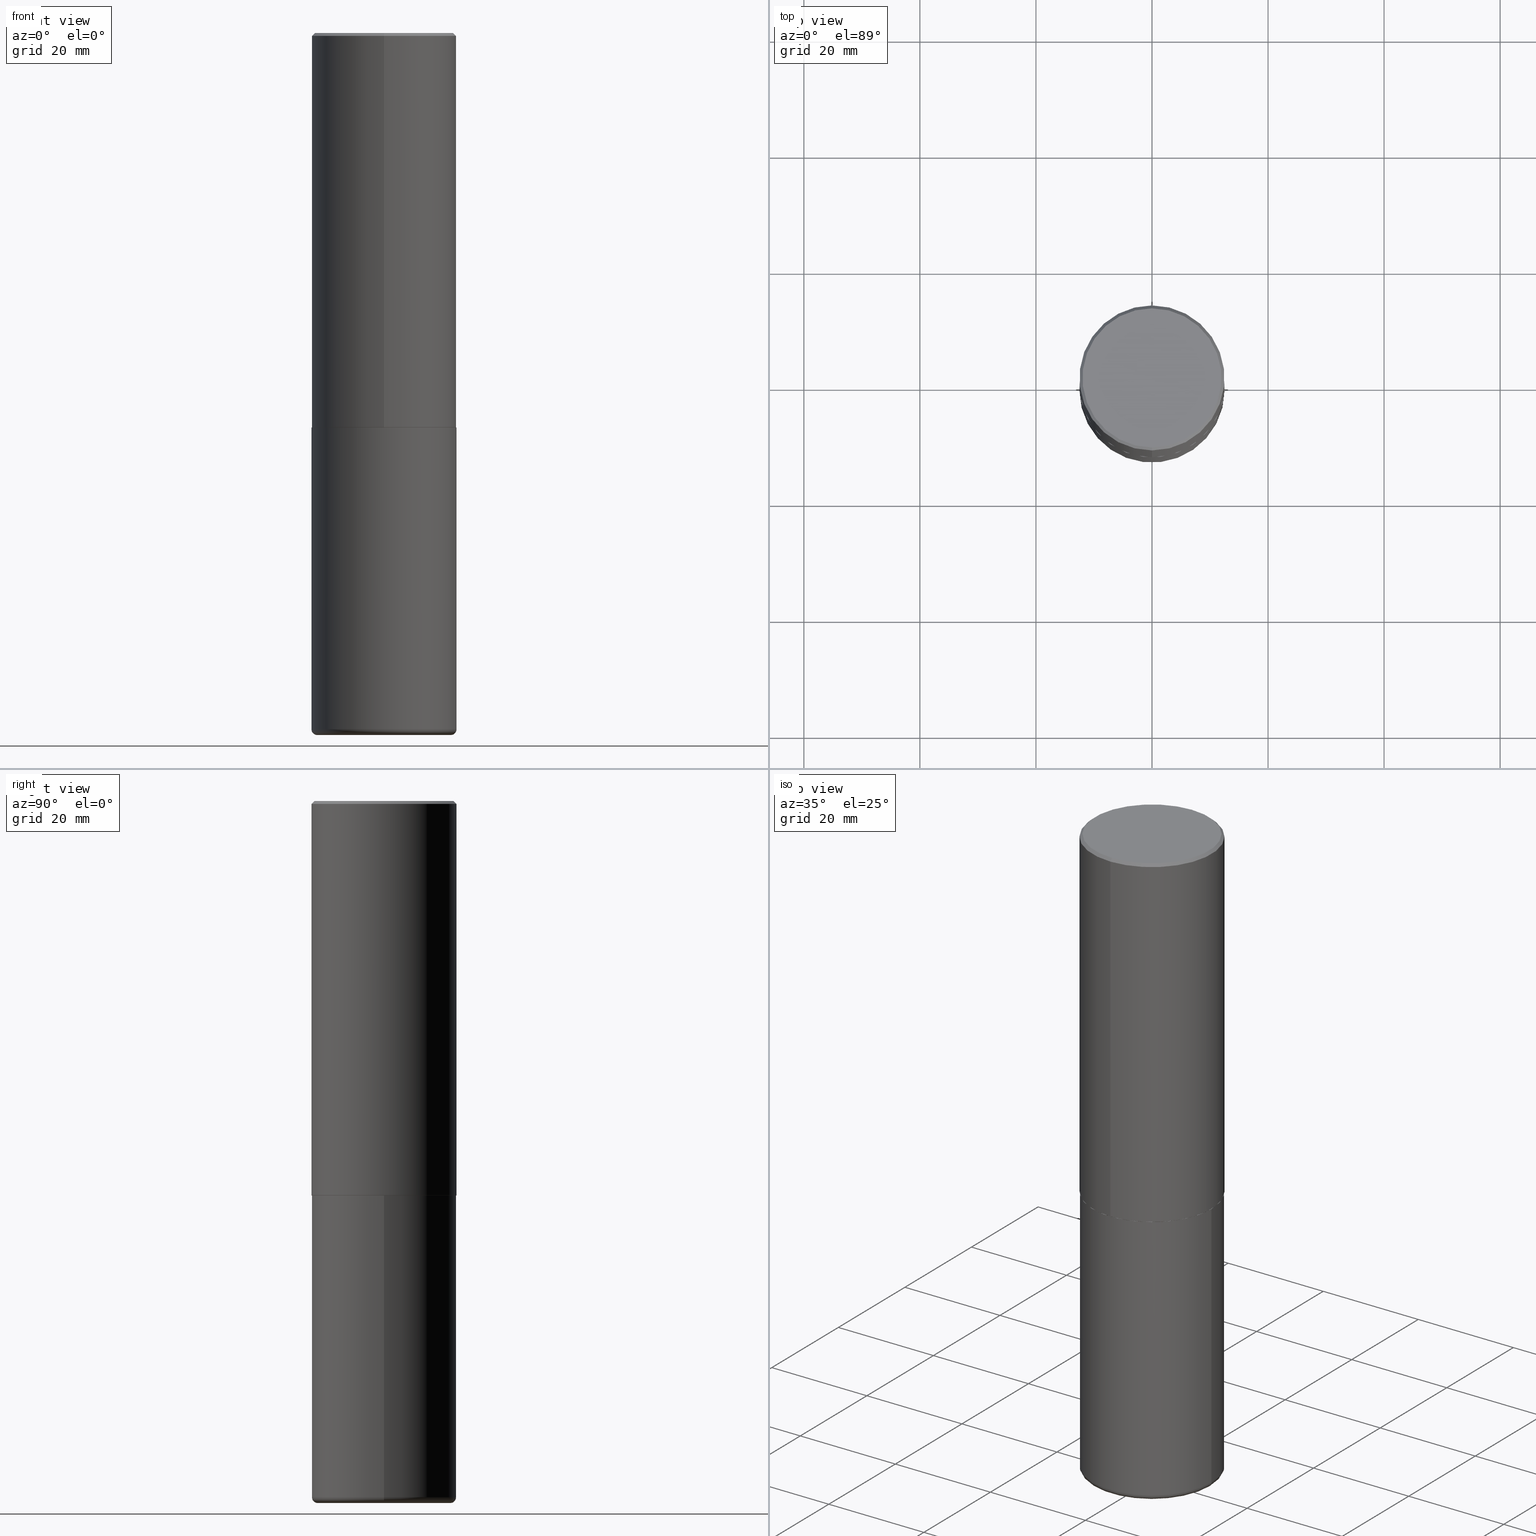
[diagram: canonical four-view strip — front | top / right | iso, engineering-drawing reading convention]
A machine part, canonical four-view strip (front | top / right | iso — engineering-drawing reading convention). The complete STEP part file that produces these views, byte-faithful:
ISO-10303-21;
HEADER;
FILE_DESCRIPTION (( 'STEP AP203' ),
    '1' );
FILE_NAME ('47146.STEP',
    '2024-03-05T23:41:40',
    ( '' ),
    ( '' ),
    'SwSTEP 2.0',
    'SolidWorks 2023',
    '' );
FILE_SCHEMA (( 'CONFIG_CONTROL_DESIGN' ));
ENDSEC;

DATA;
#1 = DIRECTION ( 'NONE',  ( -6.982962677686265922E-15, -1.000000000000000000, 3.486624039460257331E-15 ) ) ;
#2 = APPROVAL_DATE_TIME ( #328, #152 ) ;
#3 = ADVANCED_FACE ( 'NONE', ( #123 ), #35, .T. ) ;
#4 = FACE_OUTER_BOUND ( 'NONE', #50, .T. ) ;
#5 = AXIS2_PLACEMENT_3D ( 'NONE', #414, #125, #126 ) ;
#6 = CARTESIAN_POINT ( 'NONE',  ( -0.4921499999999999764, 3.496936074043332897E-15, -2.420853904668951509E-29 ) ) ;
#7 = CLOSED_SHELL ( 'NONE', ( #31, #147, #71, #3, #374, #271, #237, #122 ) ) ;
#8 = EDGE_CURVE ( 'NONE', #30, #189, #354, .T. ) ;
#9 = DIRECTION ( 'NONE',  ( 5.024295867790635654E-15, 0.7071067811869121700, 0.7071067811861828645 ) ) ;
#10 = EDGE_CURVE ( 'NONE', #404, #379, #273, .T. ) ;
#11 = CARTESIAN_POINT ( 'NONE',  ( 1.155337282794105951E-28, -1.649515443723055610E-14, -4.724399999999999267 ) ) ;
#12 = FACE_OUTER_BOUND ( 'NONE', #233, .T. ) ;
#13 = AXIS2_PLACEMENT_3D ( 'NONE', #264, #319, #294 ) ;
#14 = CIRCLE ( 'NONE', #384, 0.4921500000000002539 ) ;
#15 = CARTESIAN_POINT ( 'NONE',  ( -0.4921500000000000874, -1.299821836318722241E-14, -4.724399999999999267 ) ) ;
#16 = ORIENTED_EDGE ( 'NONE', *, *, #57, .T. ) ;
#17 = DATE_AND_TIME ( #376, #372 ) ;
#18 = ORIENTED_EDGE ( 'NONE', *, *, #26, .F. ) ;
#19 = PERSON_AND_ORGANIZATION ( #254, #206 ) ;
#20 = AXIS2_PLACEMENT_3D ( 'NONE', #301, #365, #47 ) ;
#21 = ORIENTED_EDGE ( 'NONE', *, *, #412, .T. ) ;
#22 = PERSON_AND_ORGANIZATION_ROLE ( 'creator' ) ;
#23 = CARTESIAN_POINT ( 'NONE',  ( 1.155337282794105951E-28, -1.649515443723055610E-14, -4.724399999999999267 ) ) ;
#24 = ORIENTED_EDGE ( 'NONE', *, *, #64, .T. ) ;
#25 = DATE_AND_TIME ( #343, #400 ) ;
#26 = EDGE_CURVE ( 'NONE', #262, #164, #226, .T. ) ;
#27 = FACE_OUTER_BOUND ( 'NONE', #145, .T. ) ;
#28 = AXIS2_PLACEMENT_3D ( 'NONE', #40, #278, #300 ) ;
#29 = AXIS2_PLACEMENT_3D ( 'NONE', #391, #143, #279 ) ;
#30 = VERTEX_POINT ( 'NONE', #165 ) ;
#31 = ADVANCED_FACE ( 'NONE', ( #155 ), #199, .T. ) ;
#32 = CARTESIAN_POINT ( 'NONE',  ( 4.894235917135264524E-31, -6.978239317535049922E-17, -0.02000000000000010797 ) ) ;
#33 = ORIENTED_EDGE ( 'NONE', *, *, #39, .F. ) ;
#34 = CALENDAR_DATE ( 2024, 5, 3 ) ;
#35 = CONICAL_SURFACE ( 'NONE', #104, 0.4921499999999999209, 0.7853981633974466137 ) ;
#36 = EDGE_LOOP ( 'NONE', ( #385, #351, #287, #383 ) ) ;
#37 = AXIS2_PLACEMENT_3D ( 'NONE', #41, #397, #239 ) ;
#38 = DIRECTION ( 'NONE',  ( -2.447117958567619178E-29, 3.489119658767506053E-15, 1.000000000000000000 ) ) ;
#39 = EDGE_CURVE ( 'NONE', #358, #318, #163, .T. ) ;
#40 = CARTESIAN_POINT ( 'NONE',  ( 1.164972429890475522E-28, -1.663271880198097847E-14, -4.763799999999999812 ) ) ;
#41 = CARTESIAN_POINT ( 'NONE',  ( 0.000000000000000000, 0.000000000000000000, 0.000000000000000000 ) ) ;
#42 = AXIS2_PLACEMENT_3D ( 'NONE', #207, #333, #45 ) ;
#43 = ADVANCED_FACE ( 'NONE', ( #27 ), #398, .T. ) ;
#44 = DIRECTION ( 'NONE',  ( 4.937700262164538576E-15, 0.7071067811865437980, -0.7071067811865511255 ) ) ;
#45 = DIRECTION ( 'NONE',  ( -6.982962677686265922E-15, -1.000000000000000000, 3.337287582609300506E-15 ) ) ;
#46 = DIRECTION ( 'NONE',  ( 1.000000000000000000, -6.982962677686265133E-15, 4.883557194083112901E-29 ) ) ;
#47 = DIRECTION ( 'NONE',  ( 1.000000000000000000, -6.982962677686265922E-15, 0.000000000000000000 ) ) ;
#48 = PLANE ( 'NONE',  #368 ) ;
#49 = CYLINDRICAL_SURFACE ( 'NONE', #166, 0.4921500000000000874 ) ;
#50 = EDGE_LOOP ( 'NONE', ( #347, #156, #380, #326 ) ) ;
#51 = ORIENTED_EDGE ( 'NONE', *, *, #96, .F. ) ;
#52 = CARTESIAN_POINT ( 'NONE',  ( 0.000000000000000000, 0.000000000000000000, 0.000000000000000000 ) ) ;
#53 = CARTESIAN_POINT ( 'NONE',  ( 7.635318159677945866E-29, -2.238157687916168233E-14, -4.763799999999999812 ) ) ;
#54 = AXIS2_PLACEMENT_3D ( 'NONE', #53, #185, #317 ) ;
#55 = ORIENTED_EDGE ( 'NONE', *, *, #10, .T. ) ;
#56 = CC_DESIGN_DATE_AND_TIME_ASSIGNMENT ( #299, #231, ( #73 ) ) ;
#57 = EDGE_CURVE ( 'NONE', #30, #320, #66, .T. ) ;
#58 = PERSON_AND_ORGANIZATION ( #254, #206 ) ;
#59 = FACE_OUTER_BOUND ( 'NONE', #297, .T. ) ;
#60 = CC_DESIGN_APPROVAL ( #364, ( #93 ) ) ;
#61 = ORIENTED_EDGE ( 'NONE', *, *, #8, .F. ) ;
#62 = CARTESIAN_POINT ( 'NONE',  ( -3.376394089603257868E-15, -0.4921499999999999764, -0.01999999999999839059 ) ) ;
#63 = DIRECTION ( 'NONE',  ( -6.982962677686265922E-15, -1.000000000000000000, 3.337287582609300506E-15 ) ) ;
#64 = EDGE_CURVE ( 'NONE', #358, #173, #360, .T. ) ;
#65 = CARTESIAN_POINT ( 'NONE',  ( -3.376394089603257868E-15, -0.4921499999999999764, -0.01999999999999839059 ) ) ;
#66 = CIRCLE ( 'NONE', #5, 0.4721499999999996255 ) ;
#67 = ORIENTED_EDGE ( 'NONE', *, *, #137, .F. ) ;
#68 = APPROVAL_ROLE ( '' ) ;
#69 = LOCAL_TIME ( 18, 41, 40.00000000000000000, #272 ) ;
#70 = CARTESIAN_POINT ( 'NONE',  ( 4.894235917135264524E-31, -6.978239317535049922E-17, -0.02000000000000010797 ) ) ;
#71 = ADVANCED_FACE ( 'NONE', ( #59 ), #98, .T. ) ;
#72 = CARTESIAN_POINT ( 'NONE',  ( 0.4527499999999999858, -1.979425515430343739E-14, -4.763799999999999812 ) ) ;
#73 = SECURITY_CLASSIFICATION ( '', '', #406 ) ;
#74 = DIRECTION ( 'NONE',  ( 2.447117958567618897E-29, -3.489119658767506053E-15, -1.000000000000000000 ) ) ;
#75 = DIRECTION ( 'NONE',  ( 1.000000000000000000, -6.982962677686261977E-15, 0.000000000000000000 ) ) ;
#76 = DIRECTION ( 'NONE',  ( 1.000000000000000000, -6.982962677686265922E-15, 4.876176775795935793E-29 ) ) ;
#77 = EDGE_CURVE ( 'NONE', #164, #404, #324, .T. ) ;
#78 = DIRECTION ( 'NONE',  ( 2.438088387897960049E-29, -3.491481338843145188E-15, -1.000000000000000000 ) ) ;
#79 = ORIENTED_EDGE ( 'NONE', *, *, #290, .T. ) ;
#80 = AXIS2_PLACEMENT_3D ( 'NONE', #362, #283, #176 ) ;
#81 = APPLICATION_PROTOCOL_DEFINITION ( 'international standard', 'config_control_design', 1994, #281 ) ;
#82 = FACE_OUTER_BOUND ( 'NONE', #230, .T. ) ;
#83 = PERSON_AND_ORGANIZATION_ROLE ( 'design_supplier' ) ;
#84 = CIRCLE ( 'NONE', #315, 0.4527499999999999858 ) ;
#85 = PRODUCT_DEFINITION_SHAPE ( 'NONE', 'NONE',  #93 ) ;
#86 = DIRECTION ( 'NONE',  ( 6.982962677686265922E-15, 1.000000000000000000, -3.486624039460257331E-15 ) ) ;
#87 = CARTESIAN_POINT ( 'NONE',  ( 6.551424198677227885E-29, -9.341071150452363547E-15, -2.677199999999999136 ) ) ;
#88 = COORDINATED_UNIVERSAL_TIME_OFFSET ( 5, 0, .BEHIND. ) ;
#89 = MANIFOLD_SOLID_BREP ( 'Body-Move/Copy2[1]', #314 ) ;
#90 = EDGE_LOOP ( 'NONE', ( #55, #415 ) ) ;
#91 = AXIS2_PLACEMENT_3D ( 'NONE', #363, #131, #274 ) ;
#92 = ORIENTED_EDGE ( 'NONE', *, *, #225, .F. ) ;
#93 = PRODUCT_DEFINITION ( 'UNKNOWN', '', #192, #340 ) ;
#94 = FACE_OUTER_BOUND ( 'NONE', #409, .T. ) ;
#95 = ORIENTED_EDGE ( 'NONE', *, *, #389, .T. ) ;
#96 = EDGE_CURVE ( 'NONE', #173, #142, #168, .T. ) ;
#97 = CARTESIAN_POINT ( 'NONE',  ( 0.000000000000000000, 0.000000000000000000, 0.000000000000000000 ) ) ;
#98 = CONICAL_SURFACE ( 'NONE', #341, 0.4921499999999999209, 0.7853981633974466137 ) ;
#99 = CC_DESIGN_SECURITY_CLASSIFICATION ( #73, ( #192 ) ) ;
#100 = EDGE_CURVE ( 'NONE', #262, #295, #158, .T. ) ;
#101 = LINE ( 'NONE', #6, #275 ) ;
#102 = CARTESIAN_POINT ( 'NONE',  ( 3.496936074043333291E-15, 0.4921500000000000874, -1.717170240062428491E-15 ) ) ;
#103 = DIRECTION ( 'NONE',  ( -2.447117958567619178E-29, 3.489119658767506053E-15, 1.000000000000000000 ) ) ;
#104 = AXIS2_PLACEMENT_3D ( 'NONE', #32, #188, #86 ) ;
#105 = DIRECTION ( 'NONE',  ( -6.982962677686266711E-15, -1.000000000000000000, 3.330506545156064285E-15 ) ) ;
#106 = CIRCLE ( 'NONE', #20, 0.4921499999999999764 ) ;
#107 = FACE_OUTER_BOUND ( 'NONE', #36, .T. ) ;
#108 = CARTESIAN_POINT ( 'NONE',  ( -3.429682119145543892E-15, -0.4911500000000093014, -2.677199999999997360 ) ) ;
#109 = EDGE_CURVE ( 'NONE', #320, #396, #209, .T. ) ;
#110 = PERSON_AND_ORGANIZATION_ROLE ( 'design_owner' ) ;
#111 = CIRCLE ( 'NONE', #159, 0.4921499999999999764 ) ;
#112 = CARTESIAN_POINT ( 'NONE',  ( 6.551424198677227885E-29, -9.341071150452363547E-15, -2.677199999999999136 ) ) ;
#113 = DIRECTION ( 'NONE',  ( -1.000000000000000000, 6.982962677686265922E-15, -4.876176775795935793E-29 ) ) ;
#114 = ADVANCED_BREP_SHAPE_REPRESENTATION ( '47146', ( #89, #238, #323 ), #127 ) ;
#115 = DATE_AND_TIME ( #344, #184 ) ;
#116 = PERSON_AND_ORGANIZATION ( #254, #206 ) ;
#117 = VECTOR ( 'NONE', #293, 39.37007874015748143 ) ;
#118 = AXIS2_PLACEMENT_3D ( 'NONE', #97, #203, #392 ) ;
#119 = ORIENTED_EDGE ( 'NONE', *, *, #412, .F. ) ;
#120 = EDGE_LOOP ( 'NONE', ( #325, #16 ) ) ;
#121 = CARTESIAN_POINT ( 'NONE',  ( 3.436665081823295777E-15, 0.4921499999999998098, -0.02000000000000182188 ) ) ;
#122 = ADVANCED_FACE ( 'NONE', ( #172 ), #331, .F. ) ;
#123 = FACE_OUTER_BOUND ( 'NONE', #194, .T. ) ;
#124 = EDGE_LOOP ( 'NONE', ( #213, #95, #21, #223 ) ) ;
#125 = DIRECTION ( 'NONE',  ( -2.447117958567619178E-29, 3.489119658767506053E-15, 1.000000000000000000 ) ) ;
#126 = DIRECTION ( 'NONE',  ( -6.982962677686265922E-15, -1.000000000000000000, 3.489119658767506053E-15 ) ) ;
#127 =( GEOMETRIC_REPRESENTATION_CONTEXT ( 3 ) GLOBAL_UNCERTAINTY_ASSIGNED_CONTEXT ( ( #215 ) ) GLOBAL_UNIT_ASSIGNED_CONTEXT ( ( #373, #220, #349 ) ) REPRESENTATION_CONTEXT ( 'NONE', 'WORKASPACE' ) );
#128 = ORIENTED_EDGE ( 'NONE', *, *, #77, .F. ) ;
#129 = ORIENTED_EDGE ( 'NONE', *, *, #290, .F. ) ;
#130 = DIRECTION ( 'NONE',  ( -2.447117958567619178E-29, 3.489119658767506053E-15, 1.000000000000000000 ) ) ;
#131 = DIRECTION ( 'NONE',  ( 7.105427357601001859E-15, 1.000000000000000000, -3.491481338843145583E-15 ) ) ;
#132 = DIRECTION ( 'NONE',  ( -2.447117958567619178E-29, 3.489119658767506053E-15, 1.000000000000000000 ) ) ;
#133 = CARTESIAN_POINT ( 'NONE',  ( 3.297005828269567997E-15, 0.4721499999999996255, -1.534829799523272196E-15 ) ) ;
#134 = DIRECTION ( 'NONE',  ( -6.982962677686265922E-15, -1.000000000000000000, 3.486624039460257331E-15 ) ) ;
#135 = CARTESIAN_POINT ( 'NONE',  ( -3.436665081823232273E-15, -0.4921500000000095798, -2.676199999999997914 ) ) ;
#136 = DIRECTION ( 'NONE',  ( 1.000000000000000000, -6.982962677686269077E-15, 0.000000000000000000 ) ) ;
#137 = EDGE_CURVE ( 'NONE', #189, #396, #322, .T. ) ;
#138 = VECTOR ( 'NONE', #193, 39.37007874015748854 ) ;
#139 = DIRECTION ( 'NONE',  ( -2.445468806185136597E-29, 3.491481338843145583E-15, 1.000000000000000000 ) ) ;
#140 = APPROVAL_PERSON_ORGANIZATION ( #19, #364, #263 ) ;
#141 = CC_DESIGN_PERSON_AND_ORGANIZATION_ASSIGNMENT ( #251, #22, ( #93 ) ) ;
#142 = VERTEX_POINT ( 'NONE', #277 ) ;
#143 = DIRECTION ( 'NONE',  ( -2.445468806185136597E-29, 3.491481338843145583E-15, 1.000000000000000000 ) ) ;
#144 = EDGE_CURVE ( 'NONE', #396, #189, #205, .T. ) ;
#145 = EDGE_LOOP ( 'NONE', ( #342, #270, #129, #18 ) ) ;
#146 = APPROVAL_STATUS ( 'not_yet_approved' ) ;
#147 = ADVANCED_FACE ( 'NONE', ( #393 ), #170, .T. ) ;
#148 = ORIENTED_EDGE ( 'NONE', *, *, #356, .F. ) ;
#149 = DIRECTION ( 'NONE',  ( -6.982962677686266711E-15, -1.000000000000000000, 3.330506545156064285E-15 ) ) ;
#150 = AXIS2_PLACEMENT_3D ( 'NONE', #70, #103, #1 ) ;
#151 = AXIS2_PLACEMENT_3D ( 'NONE', #339, #139, #76 ) ;
#152 = APPROVAL ( #224, 'UNSPECIFIED' ) ;
#153 = EDGE_LOOP ( 'NONE', ( #51, #401, #169, #202 ) ) ;
#154 = PERSON_AND_ORGANIZATION ( #254, #206 ) ;
#155 = FACE_OUTER_BOUND ( 'NONE', #198, .T. ) ;
#156 = ORIENTED_EDGE ( 'NONE', *, *, #225, .T. ) ;
#157 =( LENGTH_UNIT ( ) NAMED_UNIT ( * ) SI_UNIT ( $, .METRE. ) );
#158 = CIRCLE ( 'NONE', #28, 0.4527499999999999858 ) ;
#159 = AXIS2_PLACEMENT_3D ( 'NONE', #310, #336, #75 ) ;
#160 = CARTESIAN_POINT ( 'NONE',  ( 4.894235917135264524E-31, -6.978239317535049922E-17, -0.02000000000000010797 ) ) ;
#161 = ORIENTED_EDGE ( 'NONE', *, *, #330, .F. ) ;
#162 = PERSON_AND_ORGANIZATION ( #254, #206 ) ;
#163 = LINE ( 'NONE', #292, #117 ) ;
#164 = VERTEX_POINT ( 'NONE', #329 ) ;
#165 = CARTESIAN_POINT ( 'NONE',  ( -3.307789109625541747E-15, -0.4721499999999996255, 1.872503941614685503E-15 ) ) ;
#166 = AXIS2_PLACEMENT_3D ( 'NONE', #247, #132, #367 ) ;
#167 = ORIENTED_EDGE ( 'NONE', *, *, #144, .T. ) ;
#168 = LINE ( 'NONE', #200, #234 ) ;
#169 = ORIENTED_EDGE ( 'NONE', *, *, #39, .T. ) ;
#170 = CYLINDRICAL_SURFACE ( 'NONE', #118, 0.4921500000000000874 ) ;
#171 = CARTESIAN_POINT ( 'NONE',  ( 3.366835455046432084E-15, 0.4721499999999996255, -1.422271752159468089E-15 ) ) ;
#172 = FACE_OUTER_BOUND ( 'NONE', #120, .T. ) ;
#173 = VERTEX_POINT ( 'NONE', #242 ) ;
#174 = CYLINDRICAL_SURFACE ( 'NONE', #37, 0.4921499999999999764 ) ;
#175 = EDGE_CURVE ( 'NONE', #142, #396, #386, .T. ) ;
#176 = DIRECTION ( 'NONE',  ( -6.982962677686265922E-15, -1.000000000000000000, 3.489119658767506053E-15 ) ) ;
#177 = CARTESIAN_POINT ( 'NONE',  ( -0.4921499999999999764, -9.424338064747378311E-15, -2.677199999999999580 ) ) ;
#178 = CIRCLE ( 'NONE', #80, 0.4721499999999996255 ) ;
#179 = PERSON_AND_ORGANIZATION ( #254, #206 ) ;
#180 = ORIENTED_EDGE ( 'NONE', *, *, #96, .T. ) ;
#181 = DIRECTION ( 'NONE',  ( 1.000000000000000000, 0.000000000000000000, 0.000000000000000000 ) ) ;
#182 = ORIENTED_EDGE ( 'NONE', *, *, #175, .T. ) ;
#183 = COORDINATED_UNIVERSAL_TIME_OFFSET ( 5, 0, .BEHIND. ) ;
#184 = LOCAL_TIME ( 18, 41, 40.00000000000000000, #288 ) ;
#185 = DIRECTION ( 'NONE',  ( 2.438088387897960049E-29, -3.491481338843145188E-15, -1.000000000000000000 ) ) ;
#186 = ORIENTED_EDGE ( 'NONE', *, *, #100, .F. ) ;
#187 = PERSON_AND_ORGANIZATION ( #254, #206 ) ;
#188 = DIRECTION ( 'NONE',  ( 2.447117958567619178E-29, -3.489119658767506053E-15, -1.000000000000000000 ) ) ;
#189 = VERTEX_POINT ( 'NONE', #65 ) ;
#190 = CARTESIAN_POINT ( 'NONE',  ( 0.4921499999999999764, -1.278405892217416209E-14, -2.677199999999999580 ) ) ;
#191 = AXIS2_PLACEMENT_3D ( 'NONE', #229, #219, #357 ) ;
#192 = PRODUCT_DEFINITION_FORMATION_WITH_SPECIFIED_SOURCE ( 'ANY', '', #378, .NOT_KNOWN. ) ;
#193 = DIRECTION ( 'NONE',  ( -4.851104656540954809E-15, -0.7071067811865486830, -0.7071067811865462405 ) ) ;
#194 = EDGE_LOOP ( 'NONE', ( #61, #148, #355, #167 ) ) ;
#195 = ADVANCED_FACE ( 'NONE', ( #4 ), #259, .T. ) ;
#196 = CC_DESIGN_PERSON_AND_ORGANIZATION_ASSIGNMENT ( #154, #83, ( #192 ) ) ;
#197 = CARTESIAN_POINT ( 'NONE',  ( 6.551424198677227885E-29, -9.341071150452363547E-15, -2.677199999999999136 ) ) ;
#198 = EDGE_LOOP ( 'NONE', ( #24, #180, #161, #33 ) ) ;
#199 = CONICAL_SURFACE ( 'NONE', #382, 0.4911499999999999755, 0.7853981633979605359 ) ;
#200 = CARTESIAN_POINT ( 'NONE',  ( 3.489830646685796970E-15, 0.4911499999999905941, -2.677200000000000468 ) ) ;
#201 = CIRCLE ( 'NONE', #91, 0.03940000000000033753 ) ;
#202 = ORIENTED_EDGE ( 'NONE', *, *, #389, .F. ) ;
#203 = DIRECTION ( 'NONE',  ( -2.447117958567619178E-29, 3.489119658767506053E-15, 1.000000000000000000 ) ) ;
#204 = APPLICATION_CONTEXT ( 'configuration controlled 3d designs of mechanical parts and assemblies' ) ;
#205 = CIRCLE ( 'NONE', #267, 0.4921499999999999209 ) ;
#206 = ORGANIZATION ( 'UNSPECIFIED', 'UNSPECIFIED', '' ) ;
#207 = CARTESIAN_POINT ( 'NONE',  ( 6.551424198677227885E-29, -9.341071150452363547E-15, -2.677199999999999136 ) ) ;
#208 = CC_DESIGN_PERSON_AND_ORGANIZATION_ASSIGNMENT ( #179, #110, ( #378 ) ) ;
#209 = LINE ( 'NONE', #335, #388 ) ;
#210 = DIRECTION ( 'NONE',  ( -2.447117958567619178E-29, 3.489119658767506053E-15, 1.000000000000000000 ) ) ;
#211 = FACE_OUTER_BOUND ( 'NONE', #124, .T. ) ;
#212 = DIRECTION ( 'NONE',  ( -6.982962677686265922E-15, -1.000000000000000000, 3.337287582609300506E-15 ) ) ;
#213 = ORIENTED_EDGE ( 'NONE', *, *, #175, .F. ) ;
#214 = CARTESIAN_POINT ( 'NONE',  ( 6.548977080718662055E-29, -9.337582030793598206E-15, -2.676199999999999690 ) ) ;
#215 = UNCERTAINTY_MEASURE_WITH_UNIT (LENGTH_MEASURE( 1.000000000000000082E-05 ), #373, 'distance_accuracy_value', 'NONE');
#216 = ORIENTED_EDGE ( 'NONE', *, *, #255, .F. ) ;
#217 = APPROVAL_STATUS ( 'not_yet_approved' ) ;
#218 = APPROVAL_PERSON_ORGANIZATION ( #162, #152, #68 ) ;
#219 = DIRECTION ( 'NONE',  ( -6.982962677686266711E-15, -1.000000000000000000, 3.491481338843145583E-15 ) ) ;
#220 =( NAMED_UNIT ( * ) PLANE_ANGLE_UNIT ( ) SI_UNIT ( $, .RADIAN. ) );
#221 = EDGE_CURVE ( 'NONE', #295, #266, #201, .T. ) ;
#222 = DIRECTION ( 'NONE',  ( -6.982962677686265922E-15, -1.000000000000000000, 3.337287582609300506E-15 ) ) ;
#223 = ORIENTED_EDGE ( 'NONE', *, *, #144, .F. ) ;
#224 = APPROVAL_STATUS ( 'not_yet_approved' ) ;
#225 = EDGE_CURVE ( 'NONE', #295, #262, #84, .T. ) ;
#226 = CIRCLE ( 'NONE', #191, 0.03940000000000033753 ) ;
#227 = LOCAL_TIME ( 18, 41, 40.00000000000000000, #369 ) ;
#228 = EDGE_LOOP ( 'NONE', ( #387, #182, #67, #119 ) ) ;
#229 = CARTESIAN_POINT ( 'NONE',  ( 0.4527499999999999858, -1.965669078955301187E-14, -4.724399999999999267 ) ) ;
#230 = EDGE_LOOP ( 'NONE', ( #186, #92 ) ) ;
#231 = DATE_TIME_ROLE ( 'classification_date' ) ;
#232 = PLANE ( 'NONE',  #235 ) ;
#233 = EDGE_LOOP ( 'NONE', ( #79, #269, #359, #128 ) ) ;
#234 = VECTOR ( 'NONE', #9, 39.37007874015748143 ) ;
#235 = AXIS2_PLACEMENT_3D ( 'NONE', #313, #399, #285 ) ;
#236 = ORIENTED_EDGE ( 'NONE', *, *, #57, .F. ) ;
#237 = ADVANCED_FACE ( 'NONE', ( #94 ), #232, .F. ) ;
#238 = MANIFOLD_SOLID_BREP ( 'Body-Move/Copy2[2]', #7 ) ;
#239 = DIRECTION ( 'NONE',  ( 1.000000000000000000, -6.982962677686265922E-15, 4.876176775795935793E-29 ) ) ;
#240 = ORIENTED_EDGE ( 'NONE', *, *, #137, .T. ) ;
#241 = ADVANCED_FACE ( 'NONE', ( #289 ), #48, .F. ) ;
#242 = CARTESIAN_POINT ( 'NONE',  ( 3.493383360364598263E-15, 0.4911499999999905941, -2.677200000000000468 ) ) ;
#243 = CC_DESIGN_APPROVAL ( #152, ( #73 ) ) ;
#244 = CC_DESIGN_PERSON_AND_ORGANIZATION_ASSIGNMENT ( #116, #284, ( #73 ) ) ;
#245 = DIRECTION ( 'NONE',  ( -2.445468806185136877E-29, 3.491481338843145188E-15, 1.000000000000000000 ) ) ;
#246 = CARTESIAN_POINT ( 'NONE',  ( 6.548977080718662055E-29, -9.337582030793598206E-15, -2.676199999999999690 ) ) ;
#247 = CARTESIAN_POINT ( 'NONE',  ( 0.000000000000000000, 0.000000000000000000, 0.000000000000000000 ) ) ;
#248 = CC_DESIGN_PERSON_AND_ORGANIZATION_ASSIGNMENT ( #187, #405, ( #192 ) ) ;
#249 = AXIS2_PLACEMENT_3D ( 'NONE', #133, #74, #298 ) ;
#250 = AXIS2_PLACEMENT_3D ( 'NONE', #87, #417, #222 ) ;
#251 = PERSON_AND_ORGANIZATION ( #254, #206 ) ;
#252 = CONICAL_SURFACE ( 'NONE', #42, 0.4911499999999999755, 0.7853981633979605359 ) ;
#253 = DIRECTION ( 'NONE',  ( -2.447117958567619178E-29, 3.489119658767506053E-15, 1.000000000000000000 ) ) ;
#254 = PERSON ( 'UNSPECIFIED', 'UNSPECIFIED', 'UNSPECIFIED', ('UNSPECIFIED'), ('UNSPECIFIED'), ('UNSPECIFIED') ) ;
#255 = EDGE_CURVE ( 'NONE', #173, #358, #308, .T. ) ;
#256 = APPROVAL_ROLE ( '' ) ;
#257 = DIRECTION ( 'NONE',  ( -2.447117958567619178E-29, 3.489119658767506053E-15, 1.000000000000000000 ) ) ;
#258 = AXIS2_PLACEMENT_3D ( 'NONE', #23, #296, #407 ) ;
#259 = TOROIDAL_SURFACE ( 'NONE', #280, 0.4527499999999999858, 0.03940000000000033753 ) ;
#260 = ADVANCED_FACE ( 'NONE', ( #82 ), #346, .T. ) ;
#261 = DIRECTION ( 'NONE',  ( -2.447117958567619178E-29, 3.489119658767506053E-15, 1.000000000000000000 ) ) ;
#262 = VERTEX_POINT ( 'NONE', #72 ) ;
#263 = APPROVAL_ROLE ( '' ) ;
#264 = CARTESIAN_POINT ( 'NONE',  ( 6.547009087918846705E-29, -9.347393840350866318E-15, -2.677199999999999580 ) ) ;
#265 = CARTESIAN_POINT ( 'NONE',  ( 0.4921499999999999764, -3.436665081823295777E-15, 2.399810400207969603E-29 ) ) ;
#266 = VERTEX_POINT ( 'NONE', #15 ) ;
#267 = AXIS2_PLACEMENT_3D ( 'NONE', #305, #130, #134 ) ;
#268 = CC_DESIGN_APPROVAL ( #377, ( #192 ) ) ;
#269 = ORIENTED_EDGE ( 'NONE', *, *, #353, .T. ) ;
#270 = ORIENTED_EDGE ( 'NONE', *, *, #221, .T. ) ;
#271 = ADVANCED_FACE ( 'NONE', ( #395 ), #252, .T. ) ;
#272 = COORDINATED_UNIVERSAL_TIME_OFFSET ( 5, 0, .BEHIND. ) ;
#273 = CIRCLE ( 'NONE', #13, 0.4921499999999999764 ) ;
#274 = DIRECTION ( 'NONE',  ( -1.000000000000000000, 7.105427357601014480E-15, 0.000000000000000000 ) ) ;
#275 = VECTOR ( 'NONE', #245, 39.37007874015748143 ) ;
#276 = DIRECTION ( 'NONE',  ( -2.447117958567619178E-29, 3.489119658767506053E-15, 1.000000000000000000 ) ) ;
#277 = CARTESIAN_POINT ( 'NONE',  ( 3.496936074043367212E-15, 0.4921499999999909281, -2.676200000000001467 ) ) ;
#278 = DIRECTION ( 'NONE',  ( -2.445468806185136597E-29, 3.491481338843145583E-15, 1.000000000000000000 ) ) ;
#279 = DIRECTION ( 'NONE',  ( 1.000000000000000000, -6.982962677686261977E-15, 0.000000000000000000 ) ) ;
#280 = AXIS2_PLACEMENT_3D ( 'NONE', #11, #337, #46 ) ;
#281 = APPLICATION_CONTEXT ( 'configuration controlled 3d designs of mechanical parts and assemblies' ) ;
#282 = ORIENTED_EDGE ( 'NONE', *, *, #109, .F. ) ;
#283 = DIRECTION ( 'NONE',  ( -2.447117958567619178E-29, 3.489119658767506053E-15, 1.000000000000000000 ) ) ;
#284 = PERSON_AND_ORGANIZATION_ROLE ( 'classification_officer' ) ;
#285 = DIRECTION ( 'NONE',  ( -6.982962677686265922E-15, -1.000000000000000000, 3.489119658767506053E-15 ) ) ;
#286 = CIRCLE ( 'NONE', #334, 0.4921500000000002539 ) ;
#287 = ORIENTED_EDGE ( 'NONE', *, *, #77, .T. ) ;
#288 = COORDINATED_UNIVERSAL_TIME_OFFSET ( 5, 0, .BEHIND. ) ;
#289 = FACE_OUTER_BOUND ( 'NONE', #90, .T. ) ;
#290 = EDGE_CURVE ( 'NONE', #164, #266, #111, .T. ) ;
#291 = APPROVAL_DATE_TIME ( #25, #377 ) ;
#292 = CARTESIAN_POINT ( 'NONE',  ( -3.429682119145543892E-15, -0.4911500000000093014, -2.677199999999997360 ) ) ;
#293 = DIRECTION ( 'NONE',  ( -4.937700262167077130E-15, -0.7071067811869072850, 0.7071067811861877495 ) ) ;
#294 = DIRECTION ( 'NONE',  ( 1.000000000000000000, -6.982962677686265922E-15, 0.000000000000000000 ) ) ;
#295 = VERTEX_POINT ( 'NONE', #338 ) ;
#296 = DIRECTION ( 'NONE',  ( -2.445468806185136597E-29, 3.491481338843145583E-15, 1.000000000000000000 ) ) ;
#297 = EDGE_LOOP ( 'NONE', ( #236, #375, #240, #282 ) ) ;
#298 = DIRECTION ( 'NONE',  ( 6.982962677686265922E-15, 1.000000000000000000, -3.489119658767506053E-15 ) ) ;
#299 = DATE_AND_TIME ( #352, #227 ) ;
#300 = DIRECTION ( 'NONE',  ( 1.000000000000000000, -6.982962677686269077E-15, 0.000000000000000000 ) ) ;
#301 = CARTESIAN_POINT ( 'NONE',  ( 6.547009087918846705E-29, -9.347393840350866318E-15, -2.677199999999999580 ) ) ;
#302 = VECTOR ( 'NONE', #381, 39.37007874015748143 ) ;
#303 = AXIS2_PLACEMENT_3D ( 'NONE', #112, #253, #212 ) ;
#304 = CC_DESIGN_DATE_AND_TIME_ASSIGNMENT ( #115, #311, ( #93 ) ) ;
#305 = CARTESIAN_POINT ( 'NONE',  ( 4.894235917135264524E-31, -6.978239317535049922E-17, -0.02000000000000010797 ) ) ;
#306 = DIRECTION ( 'NONE',  ( -2.445468806185136597E-29, 3.491481338843145583E-15, 1.000000000000000000 ) ) ;
#307 = CYLINDRICAL_SURFACE ( 'NONE', #151, 0.4921499999999999764 ) ;
#308 = CIRCLE ( 'NONE', #303, 0.4911499999999999755 ) ;
#309 = EDGE_CURVE ( 'NONE', #266, #164, #361, .T. ) ;
#310 = CARTESIAN_POINT ( 'NONE',  ( 1.155337282794105951E-28, -1.649515443723055610E-14, -4.724399999999999267 ) ) ;
#311 = DATE_TIME_ROLE ( 'creation_date' ) ;
#312 = ADVANCED_FACE ( 'NONE', ( #107 ), #174, .T. ) ;
#313 = CARTESIAN_POINT ( 'NONE',  ( 6.551424198677229006E-29, -9.341071150452363547E-15, -2.677199999999999580 ) ) ;
#314 = CLOSED_SHELL ( 'NONE', ( #366, #43, #241, #312, #195, #260 ) ) ;
#315 = AXIS2_PLACEMENT_3D ( 'NONE', #390, #306, #136 ) ;
#316 = APPROVAL_DATE_TIME ( #17, #364 ) ;
#317 = DIRECTION ( 'NONE',  ( -1.000000000000000000, 6.982962677686265922E-15, -4.876176775795935793E-29 ) ) ;
#318 = VERTEX_POINT ( 'NONE', #135 ) ;
#319 = DIRECTION ( 'NONE',  ( -2.445468806185136597E-29, 3.491481338843145583E-15, 1.000000000000000000 ) ) ;
#320 = VERTEX_POINT ( 'NONE', #171 ) ;
#321 = SHAPE_DEFINITION_REPRESENTATION ( #85, #114 ) ;
#322 = CIRCLE ( 'NONE', #150, 0.4921499999999999209 ) ;
#323 = AXIS2_PLACEMENT_3D ( 'NONE', #52, #348, #181 ) ;
#324 = LINE ( 'NONE', #265, #302 ) ;
#325 = ORIENTED_EDGE ( 'NONE', *, *, #356, .T. ) ;
#326 = ORIENTED_EDGE ( 'NONE', *, *, #309, .F. ) ;
#327 = VECTOR ( 'NONE', #38, 39.37007874015748143 ) ;
#328 = DATE_AND_TIME ( #34, #69 ) ;
#329 = CARTESIAN_POINT ( 'NONE',  ( 0.4921500000000000874, -1.993181951905385030E-14, -4.724399999999999267 ) ) ;
#330 = EDGE_CURVE ( 'NONE', #318, #142, #286, .T. ) ;
#331 = PLANE ( 'NONE',  #249 ) ;
#332 = PRODUCT_RELATED_PRODUCT_CATEGORY ( 'detail', '', ( #378 ) ) ;
#333 = DIRECTION ( 'NONE',  ( -2.447117958567619178E-29, 3.489119658767506053E-15, 1.000000000000000000 ) ) ;
#334 = AXIS2_PLACEMENT_3D ( 'NONE', #246, #210, #105 ) ;
#335 = CARTESIAN_POINT ( 'NONE',  ( 3.436665081823295777E-15, 0.4921499999999998098, -0.02000000000000182188 ) ) ;
#336 = DIRECTION ( 'NONE',  ( -2.445468806185136597E-29, 3.491481338843145583E-15, 1.000000000000000000 ) ) ;
#337 = DIRECTION ( 'NONE',  ( -2.445468806185136597E-29, 3.491481338843145583E-15, 1.000000000000000000 ) ) ;
#338 = CARTESIAN_POINT ( 'NONE',  ( -0.4527499999999999858, -1.320697746450717054E-14, -4.763799999999999812 ) ) ;
#339 = CARTESIAN_POINT ( 'NONE',  ( 0.000000000000000000, 0.000000000000000000, 0.000000000000000000 ) ) ;
#340 = DESIGN_CONTEXT ( 'detailed design', #281, 'design' ) ;
#341 = AXIS2_PLACEMENT_3D ( 'NONE', #160, #413, #411 ) ;
#342 = ORIENTED_EDGE ( 'NONE', *, *, #100, .T. ) ;
#343 = CALENDAR_DATE ( 2024, 5, 3 ) ;
#344 = CALENDAR_DATE ( 2024, 5, 3 ) ;
#345 = APPLICATION_PROTOCOL_DEFINITION ( 'international standard', 'config_control_design', 1994, #204 ) ;
#346 = PLANE ( 'NONE',  #54 ) ;
#347 = ORIENTED_EDGE ( 'NONE', *, *, #221, .F. ) ;
#348 = DIRECTION ( 'NONE',  ( 0.000000000000000000, 0.000000000000000000, 1.000000000000000000 ) ) ;
#349 =( NAMED_UNIT ( * ) SI_UNIT ( $, .STERADIAN. ) SOLID_ANGLE_UNIT ( ) );
#350 = EDGE_CURVE ( 'NONE', #379, #404, #106, .T. ) ;
#351 = ORIENTED_EDGE ( 'NONE', *, *, #309, .T. ) ;
#352 = CALENDAR_DATE ( 2024, 5, 3 ) ;
#353 = EDGE_CURVE ( 'NONE', #266, #379, #101, .T. ) ;
#354 = LINE ( 'NONE', #62, #138 ) ;
#355 = ORIENTED_EDGE ( 'NONE', *, *, #109, .T. ) ;
#356 = EDGE_CURVE ( 'NONE', #320, #30, #178, .T. ) ;
#357 = DIRECTION ( 'NONE',  ( 1.000000000000000000, -6.982962677686268288E-15, 0.000000000000000000 ) ) ;
#358 = VERTEX_POINT ( 'NONE', #108 ) ;
#359 = ORIENTED_EDGE ( 'NONE', *, *, #10, .F. ) ;
#360 = CIRCLE ( 'NONE', #250, 0.4911499999999999755 ) ;
#361 = CIRCLE ( 'NONE', #29, 0.4921499999999999764 ) ;
#362 = CARTESIAN_POINT ( 'NONE',  ( -5.508856381705404921E-45, 7.854569916190676353E-31, 2.251160947276086573E-16 ) ) ;
#363 = CARTESIAN_POINT ( 'NONE',  ( -0.4527499999999999858, -1.327817220107670261E-14, -4.724399999999999267 ) ) ;
#364 = APPROVAL ( #217, 'UNSPECIFIED' ) ;
#365 = DIRECTION ( 'NONE',  ( -2.445468806185136597E-29, 3.491481338843145583E-15, 1.000000000000000000 ) ) ;
#366 = ADVANCED_FACE ( 'NONE', ( #12 ), #307, .T. ) ;
#367 = DIRECTION ( 'NONE',  ( -6.982962677686265922E-15, -1.000000000000000000, 3.489119658767506053E-15 ) ) ;
#368 = AXIS2_PLACEMENT_3D ( 'NONE', #403, #78, #113 ) ;
#369 = COORDINATED_UNIVERSAL_TIME_OFFSET ( 5, 0, .BEHIND. ) ;
#370 = LINE ( 'NONE', #402, #408 ) ;
#371 = LENGTH_MEASURE_WITH_UNIT ( LENGTH_MEASURE( 0.02539999999999999897 ), #157 );
#372 = LOCAL_TIME ( 18, 41, 40.00000000000000000, #183 ) ;
#373 =( CONVERSION_BASED_UNIT ( 'INCH', #371 ) LENGTH_UNIT ( ) NAMED_UNIT ( #394 ) );
#374 = ADVANCED_FACE ( 'NONE', ( #211 ), #49, .T. ) ;
#375 = ORIENTED_EDGE ( 'NONE', *, *, #8, .T. ) ;
#376 = CALENDAR_DATE ( 2024, 5, 3 ) ;
#377 = APPROVAL ( #146, 'UNSPECIFIED' ) ;
#378 = PRODUCT ( '47146', '47146', '', ( #410 ) ) ;
#379 = VERTEX_POINT ( 'NONE', #177 ) ;
#380 = ORIENTED_EDGE ( 'NONE', *, *, #26, .T. ) ;
#381 = DIRECTION ( 'NONE',  ( -2.445468806185136877E-29, 3.491481338843145188E-15, 1.000000000000000000 ) ) ;
#382 = AXIS2_PLACEMENT_3D ( 'NONE', #197, #261, #63 ) ;
#383 = ORIENTED_EDGE ( 'NONE', *, *, #350, .F. ) ;
#384 = AXIS2_PLACEMENT_3D ( 'NONE', #214, #276, #149 ) ;
#385 = ORIENTED_EDGE ( 'NONE', *, *, #353, .F. ) ;
#386 = LINE ( 'NONE', #102, #327 ) ;
#387 = ORIENTED_EDGE ( 'NONE', *, *, #330, .T. ) ;
#388 = VECTOR ( 'NONE', #44, 39.37007874015748854 ) ;
#389 = EDGE_CURVE ( 'NONE', #142, #318, #14, .T. ) ;
#390 = CARTESIAN_POINT ( 'NONE',  ( 1.164972429890475522E-28, -1.663271880198097847E-14, -4.763799999999999812 ) ) ;
#391 = CARTESIAN_POINT ( 'NONE',  ( 1.155337282794105951E-28, -1.649515443723055610E-14, -4.724399999999999267 ) ) ;
#392 = DIRECTION ( 'NONE',  ( -6.982962677686265922E-15, -1.000000000000000000, 3.489119658767506053E-15 ) ) ;
#393 = FACE_OUTER_BOUND ( 'NONE', #228, .T. ) ;
#394 = DIMENSIONAL_EXPONENTS ( 1.000000000000000000, 0.000000000000000000, 0.000000000000000000, 0.000000000000000000, 0.000000000000000000, 0.000000000000000000, 0.000000000000000000 ) ;
#395 = FACE_OUTER_BOUND ( 'NONE', #153, .T. ) ;
#396 = VERTEX_POINT ( 'NONE', #121 ) ;
#397 = DIRECTION ( 'NONE',  ( -2.445468806185136597E-29, 3.491481338843145583E-15, 1.000000000000000000 ) ) ;
#398 = TOROIDAL_SURFACE ( 'NONE', #258, 0.4527499999999999858, 0.03940000000000033753 ) ;
#399 = DIRECTION ( 'NONE',  ( -2.447117958567618897E-29, 3.489119658767506053E-15, 1.000000000000000000 ) ) ;
#400 = LOCAL_TIME ( 18, 41, 40.00000000000000000, #88 ) ;
#401 = ORIENTED_EDGE ( 'NONE', *, *, #255, .T. ) ;
#402 = CARTESIAN_POINT ( 'NONE',  ( -3.436665081823296565E-15, -0.4921500000000000874, 1.717170240062428491E-15 ) ) ;
#403 = CARTESIAN_POINT ( 'NONE',  ( 6.547009087918846705E-29, -9.347393840350866318E-15, -2.677199999999999580 ) ) ;
#404 = VERTEX_POINT ( 'NONE', #190 ) ;
#405 = PERSON_AND_ORGANIZATION_ROLE ( 'creator' ) ;
#406 = SECURITY_CLASSIFICATION_LEVEL ( 'unclassified' ) ;
#407 = DIRECTION ( 'NONE',  ( 1.000000000000000000, -6.982962677686265133E-15, 4.883557194083112901E-29 ) ) ;
#408 = VECTOR ( 'NONE', #257, 39.37007874015748143 ) ;
#409 = EDGE_LOOP ( 'NONE', ( #418, #216 ) ) ;
#410 = MECHANICAL_CONTEXT ( 'NONE', #204, 'mechanical' ) ;
#411 = DIRECTION ( 'NONE',  ( 6.982962677686265922E-15, 1.000000000000000000, -3.486624039460257331E-15 ) ) ;
#412 = EDGE_CURVE ( 'NONE', #318, #189, #370, .T. ) ;
#413 = DIRECTION ( 'NONE',  ( 2.447117958567619178E-29, -3.489119658767506053E-15, -1.000000000000000000 ) ) ;
#414 = CARTESIAN_POINT ( 'NONE',  ( -5.508856381705404921E-45, 7.854569916190676353E-31, 2.251160947276086573E-16 ) ) ;
#415 = ORIENTED_EDGE ( 'NONE', *, *, #350, .T. ) ;
#416 = APPROVAL_PERSON_ORGANIZATION ( #58, #377, #256 ) ;
#417 = DIRECTION ( 'NONE',  ( -2.447117958567619178E-29, 3.489119658767506053E-15, 1.000000000000000000 ) ) ;
#418 = ORIENTED_EDGE ( 'NONE', *, *, #64, .F. ) ;
ENDSEC;
END-ISO-10303-21;
